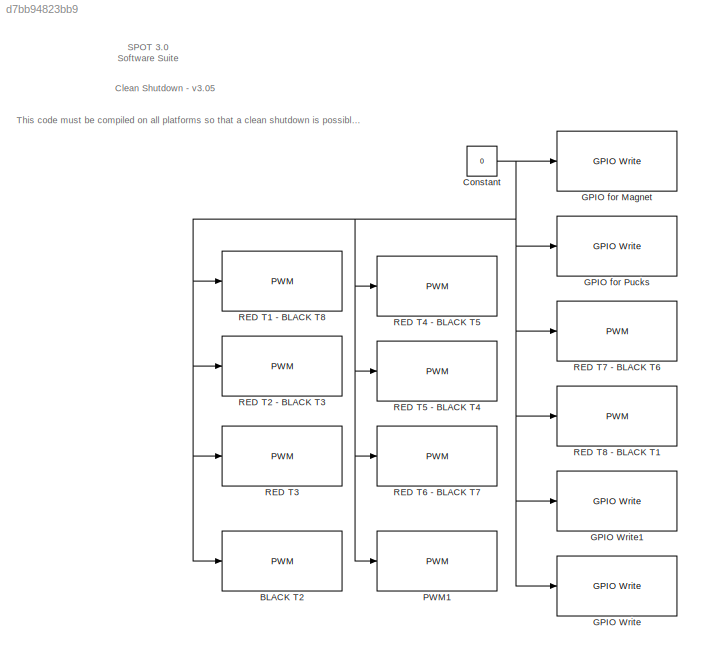
MODEL slx_d7bb94823bb9
KIND model
CONFIG AbsTol = auto
CONFIG EnableMultiTasking = on
CONFIG FixedStep = baseRate
CONFIG MaxStep = auto
CONFIG MinStep = auto
CONFIG RelTol = 1e-3
CONFIG SampleTimeConstraint = Unconstrained
CONFIG Solver = FixedStepAuto
CONFIG SolverName = FixedStepAuto
CONFIG StartTime = 0.0
CONFIG StopTime = inf
BLOCK [Reference] BLACK T2  REF=raspberrypiBasiclib/PWM
  Ports = [1]
  SourceBlock = raspberrypiBasiclib/PWM
  SourceProductBaseCode = RASPPI
  SourceType = raspi.internal.PWMBlock
BLOCK [Constant] Constant
  Value = 0
BLOCK [Reference] GPIO Write  REF=embdlinuxlib/GPIO Write
  Ports = [1]
  SourceBlock = embdlinuxlib/GPIO Write
  SourceProductBaseCode = SC_BEAGLEBONE_BLUE,RASPPI
  SourceType = GPIO Write
BLOCK [Reference] GPIO Write1  REF=embdlinuxlib/GPIO Write
  Ports = [1]
  SourceBlock = embdlinuxlib/GPIO Write
  SourceProductBaseCode = SC_BEAGLEBONE_BLUE,RASPPI
  SourceType = GPIO Write
BLOCK [Reference] GPIO for Magnet  REF=embdlinuxlib/GPIO Write
  Ports = [1]
  SourceBlock = embdlinuxlib/GPIO Write
  SourceProductBaseCode = SC_BEAGLEBONE_BLUE,RASPPI
  SourceType = GPIO Write
BLOCK [Reference] GPIO for Pucks  REF=embdlinuxlib/GPIO Write
  Ports = [1]
  SourceBlock = embdlinuxlib/GPIO Write
  SourceProductBaseCode = SC_BEAGLEBONE_BLUE,RASPPI
  SourceType = GPIO Write
BLOCK [Reference] PWM1  REF=raspberrypiBasiclib/PWM
  Ports = [1]
  SourceBlock = raspberrypiBasiclib/PWM
  SourceProductBaseCode = RASPPI
  SourceType = raspi.internal.PWMBlock
BLOCK [Reference] RED T1 - BLACK T8  REF=raspberrypiBasiclib/PWM
  Ports = [1]
  SourceBlock = raspberrypiBasiclib/PWM
  SourceProductBaseCode = RASPPI
  SourceType = raspi.internal.PWMBlock
BLOCK [Reference] RED T2 - BLACK T3  REF=raspberrypiBasiclib/PWM
  Ports = [1]
  SourceBlock = raspberrypiBasiclib/PWM
  SourceProductBaseCode = RASPPI
  SourceType = raspi.internal.PWMBlock
BLOCK [Reference] RED T3  REF=raspberrypiBasiclib/PWM
  Ports = [1]
  SourceBlock = raspberrypiBasiclib/PWM
  SourceProductBaseCode = RASPPI
  SourceType = raspi.internal.PWMBlock
BLOCK [Reference] RED T4 - BLACK T5  REF=raspberrypiBasiclib/PWM
  Ports = [1]
  SourceBlock = raspberrypiBasiclib/PWM
  SourceProductBaseCode = RASPPI
  SourceType = raspi.internal.PWMBlock
BLOCK [Reference] RED T5 - BLACK T4  REF=raspberrypiBasiclib/PWM
  Ports = [1]
  SourceBlock = raspberrypiBasiclib/PWM
  SourceProductBaseCode = RASPPI
  SourceType = raspi.internal.PWMBlock
BLOCK [Reference] RED T6 - BLACK T7  REF=raspberrypiBasiclib/PWM
  Ports = [1]
  SourceBlock = raspberrypiBasiclib/PWM
  SourceProductBaseCode = RASPPI
  SourceType = raspi.internal.PWMBlock
BLOCK [Reference] RED T7 - BLACK T6  REF=raspberrypiBasiclib/PWM
  Ports = [1]
  SourceBlock = raspberrypiBasiclib/PWM
  SourceProductBaseCode = RASPPI
  SourceType = raspi.internal.PWMBlock
BLOCK [Reference] RED T8 - BLACK T1  REF=raspberrypiBasiclib/PWM
  Ports = [1]
  SourceBlock = raspberrypiBasiclib/PWM
  SourceProductBaseCode = RASPPI
  SourceType = raspi.internal.PWMBlock
ANNOTATION (root): This code must be compiled on all platforms so that a clean shutdown is possible.
ANNOTATION (root): Clean Shutdown - v3.05
ANNOTATION (root): SPOT 3.0 Software Suite
NET Constant:1 -> BLACK T2:1, GPIO Write1:1, GPIO Write:1, GPIO for Magnet:1, GPIO for Pucks:1, PWM1:1, RED T1 - BLACK T8:1, RED T2 - BLACK T3:1, RED T3:1, RED T4 - BLACK T5:1, RED T5 - BLACK T4:1, RED T6 - BLACK T7:1, RED T7 - BLACK T6:1, RED T8 - BLACK T1:1
note: NET lines group one-source signal fan-out (src -> all destinations, sorted); 1:1 wires keep LINE
